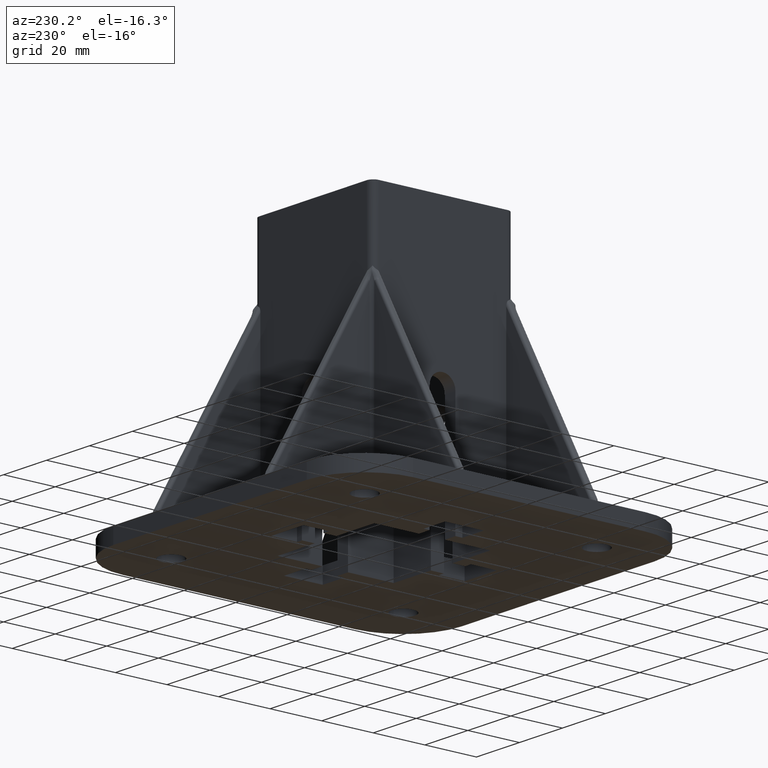
[diagram: clean part render]
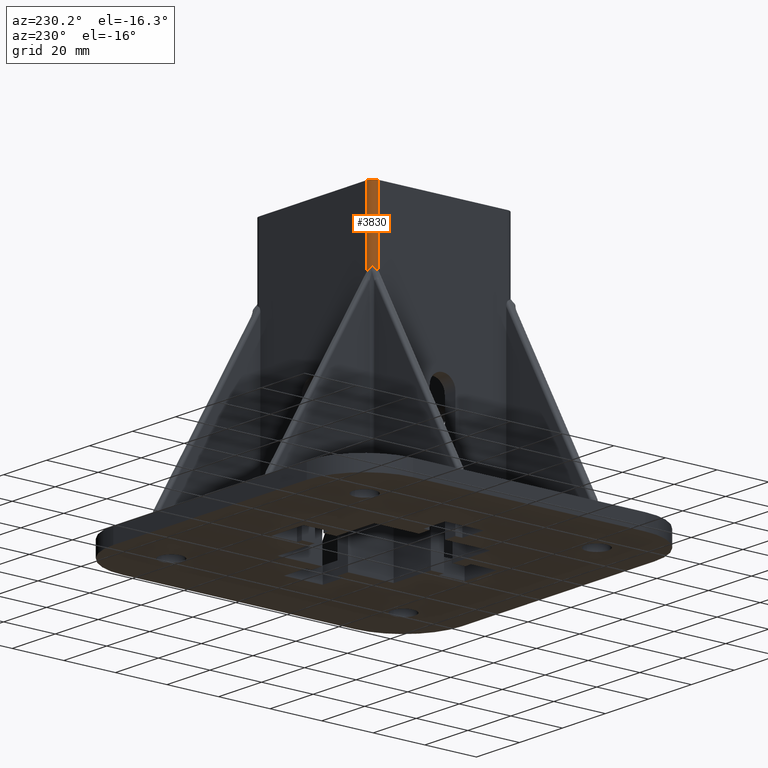
[diagram: same view with one face highlighted and labeled with its STEP entity id]
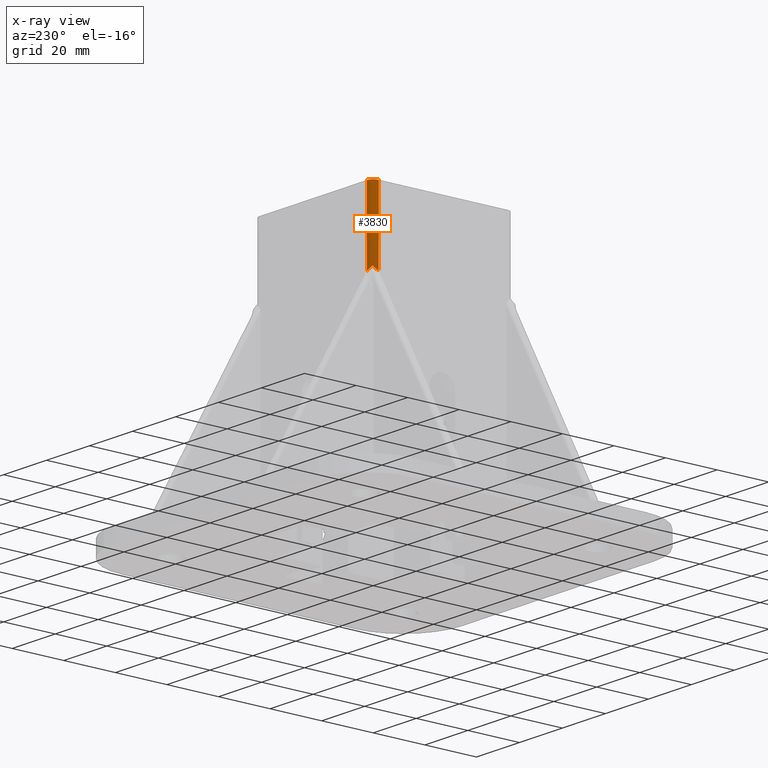
[diagram: x-ray of the same camera — body ghosted, the highlighted face saturated]
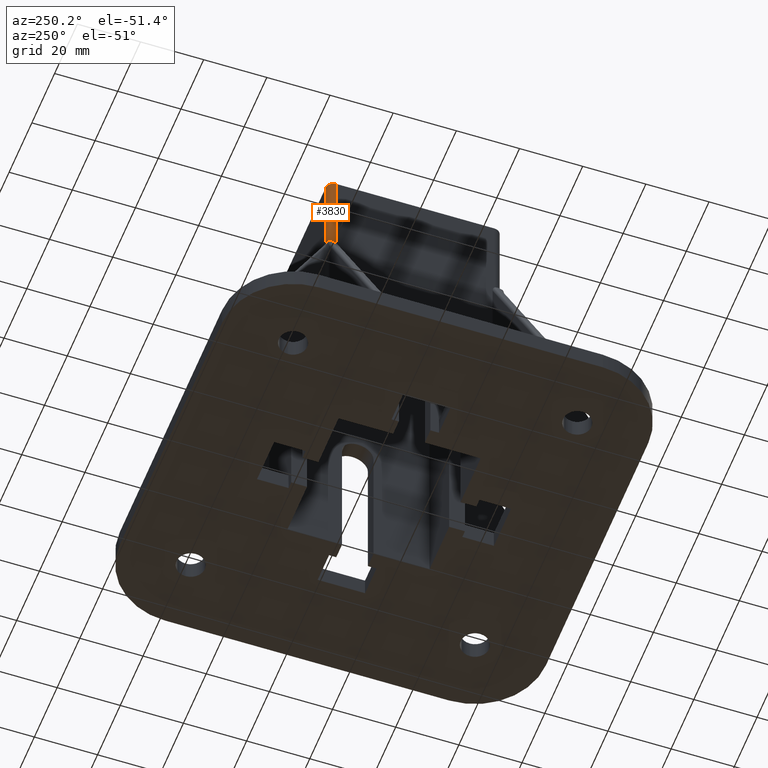
[diagram: same view with one face highlighted and labeled with its STEP entity id]
A machine part, auxiliary view. The second image highlights one B-rep face of the part: STEP entity #3830.
The next image is the same camera in x-ray: the body ghosted, the highlighted face saturated — about 0% of this face is hidden behind the body in this view.
A second angle (auxiliary view) of the same face is appended — the face is thin or edge-on in the first view.
In plain terms, the highlighted cylindrical surface (edge-blend (fillet) strip) has radius 2.5 mm, axis along (0, 0, 1).
Its self-contained STEP definition (entity closure, byte-faithful):
#1776=CARTESIAN_POINT('',(-24.999944999889891,-39.999919999840131,104.999789912801060));
#1777=VERTEX_POINT('',#1776);
#1784=CARTESIAN_POINT('',(-27.499944999889891,-42.499919999840131,104.999789912801060));
#1785=VERTEX_POINT('',#1784);
#1786=CARTESIAN_POINT('',(-24.999944999889891,-42.499919999840131,104.999789912801060));
#1787=DIRECTION('',(0.0,0.0,1.0));
#1788=DIRECTION('',(0.0,1.0,0.0));
#1789=AXIS2_PLACEMENT_3D('',#1786,#1787,#1788);
#1790=CIRCLE('',#1789,2.500000000000000);
#1791=EDGE_CURVE('',#1777,#1785,#1790,.T.);
#3770=CARTESIAN_POINT('',(-24.999944999889891,-42.499919999840131,104.999789912801060));
#3771=DIRECTION('',(0.0,0.0,1.0));
#3772=DIRECTION('',(0.000001574803173,0.999999999998760,0.0));
#3773=AXIS2_PLACEMENT_3D('',#3770,#3771,#3772);
#3774=CYLINDRICAL_SURFACE('',#3773,2.500000000000000);
#3775=CARTESIAN_POINT('',(-25.499950999902097,-40.050431481811955,77.089503879939215));
#3776=VERTEX_POINT('',#3775);
#3777=CARTESIAN_POINT('',(-26.767711963700577,-40.732153057718079,78.299559673752938));
#3778=VERTEX_POINT('',#3777);
#3779=CARTESIAN_POINT('',(-24.999944999889891,-42.499919999840131,81.437345987152156));
#3780=DIRECTION('',(-3.335002E-016,0.871247627151677,0.490843734993708));
#3781=DIRECTION('',(-1.878874E-016,0.490843734993708,-0.871247627151677));
#3782=AXIS2_PLACEMENT_3D('',#3779,#3780,#3781);
#3783=ELLIPSE('',#3782,5.093270672044024,2.500000000000000);
#3784=EDGE_CURVE('',#3776,#3778,#3783,.T.);
#3785=ORIENTED_EDGE('',*,*,#3784,.T.);
#3786=CARTESIAN_POINT('',(-27.449433517918095,-41.999913999828095,77.089503914434033));
#3787=VERTEX_POINT('',#3786);
#3788=CARTESIAN_POINT('',(-24.999944999889887,-42.499919999840124,81.437346036028288));
#3789=DIRECTION('',(-0.871247627845983,-1.667501E-016,0.490843733761314));
#3790=DIRECTION('',(-0.490843733761314,-9.394372E-017,-0.871247627845983));
#3791=AXIS2_PLACEMENT_3D('',#3788,#3789,#3790);
#3792=ELLIPSE('',#3791,5.093270684832031,2.500000000000000);
#3793=EDGE_CURVE('',#3778,#3787,#3792,.T.);
#3794=ORIENTED_EDGE('',*,*,#3793,.T.);
#3795=CARTESIAN_POINT('',(-27.499944999889891,-42.499919999840131,76.726891423010684));
#3796=VERTEX_POINT('',#3795);
#3797=CARTESIAN_POINT('',(-27.499944999889863,-42.499919999840131,76.726891423010684));
#3798=CARTESIAN_POINT('',(-27.499944999889863,-42.428769338856171,76.810583049720947));
#3799=CARTESIAN_POINT('',(-27.494300982740867,-42.275532577901458,76.955728446923501));
#3800=CARTESIAN_POINT('',(-27.468031940807776,-42.091026153123437,77.056491713788986));
#3801=CARTESIAN_POINT('',(-27.449433517918095,-41.999913999828095,77.089503914434047));
#3802=B_SPLINE_CURVE_WITH_KNOTS('',3,(#3797,#3798,#3799,#3800,#3801),.UNSPECIFIED.,.F.,.U.,(4,1,4),(0.0,0.330418783680176,0.627487505137257),.UNSPECIFIED.);
#3803=EDGE_CURVE('',#3796,#3787,#3802,.T.);
#3804=ORIENTED_EDGE('',*,*,#3803,.F.);
#3805=CARTESIAN_POINT('',(-27.499944999889891,-42.499919999840131,104.999789912801060));
#3806=DIRECTION('',(0.0,0.0,-1.0));
#3807=VECTOR('',#3806,28.272898489790379);
#3808=LINE('',#3805,#3807);
#3809=EDGE_CURVE('',#1785,#3796,#3808,.T.);
#3810=ORIENTED_EDGE('',*,*,#3809,.F.);
#3811=ORIENTED_EDGE('',*,*,#1791,.F.);
#3812=CARTESIAN_POINT('',(-24.999944999889891,-39.999919999840131,76.726891389497439));
#3813=VERTEX_POINT('',#3812);
#3814=CARTESIAN_POINT('',(-24.999944999889891,-39.999919999840131,104.999789912801060));
#3815=DIRECTION('',(0.0,0.0,-1.0));
#3816=VECTOR('',#3815,28.272898523303624);
#3817=LINE('',#3814,#3816);
#3818=EDGE_CURVE('',#1777,#3813,#3817,.T.);
#3819=ORIENTED_EDGE('',*,*,#3818,.T.);
#3820=CARTESIAN_POINT('',(-24.999944999889891,-39.999919999840131,76.726891389497439));
#3821=CARTESIAN_POINT('',(-25.071095660870611,-39.999919999840131,76.810583015993785));
#3822=CARTESIAN_POINT('',(-25.224332421873044,-40.005564016993787,76.955728412859088));
#3823=CARTESIAN_POINT('',(-25.408838846599792,-40.031833058920881,77.056491679400835));
#3824=CARTESIAN_POINT('',(-25.499950999902097,-40.050431481811984,77.089503879939244));
#3825=B_SPLINE_CURVE_WITH_KNOTS('',3,(#3820,#3821,#3822,#3823,#3824),.UNSPECIFIED.,.F.,.U.,(4,1,4),(0.0,0.330418783183449,0.627487504552458),.UNSPECIFIED.);
#3826=EDGE_CURVE('',#3813,#3776,#3825,.T.);
#3827=ORIENTED_EDGE('',*,*,#3826,.T.);
#3828=EDGE_LOOP('',(#3785,#3794,#3804,#3810,#3811,#3819,#3827));
#3829=FACE_OUTER_BOUND('',#3828,.T.);
#3830=ADVANCED_FACE('',(#3829),#3774,.T.);